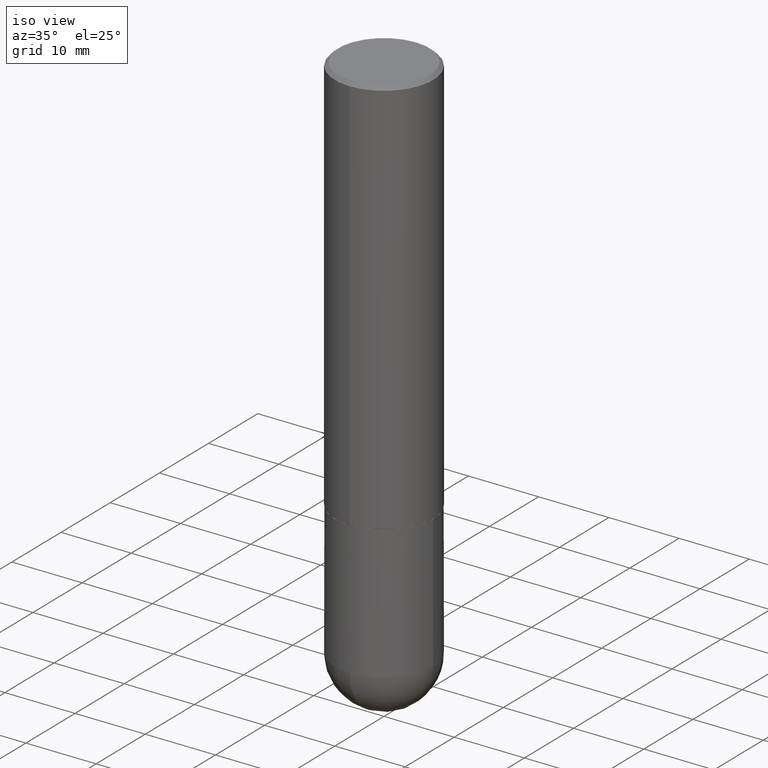
[diagram: clean part render]
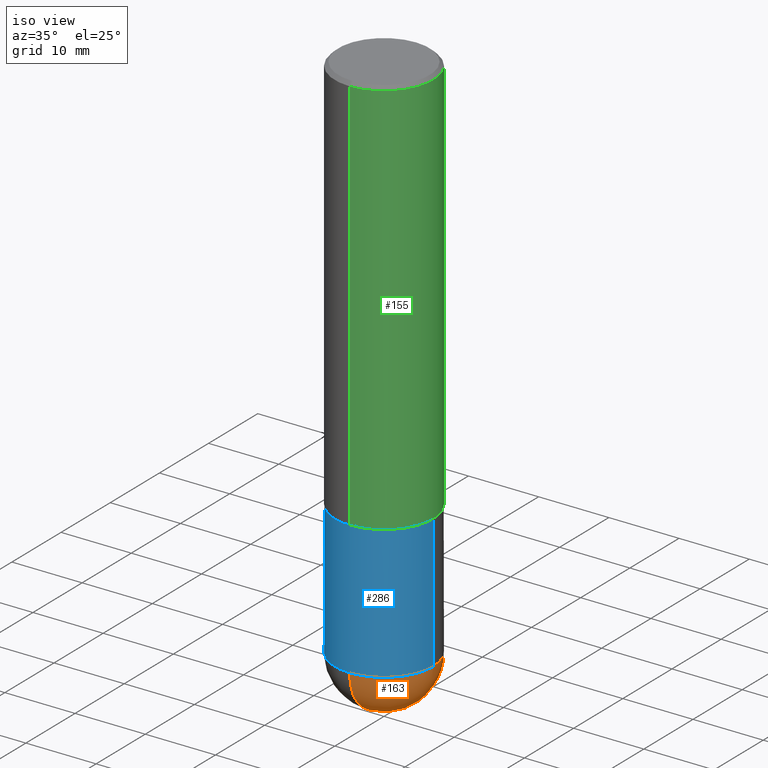
[diagram: same view with three faces highlighted in distinct colors, each labeled with its STEP entity id]
A machine part, iso view with three faces highlighted in distinct colors.
Their STEP definitions:

[orange] entity #163 — the highlighted spherical surface has radius 7.0002 mm.
#14 = DIRECTION ( 'NONE',  ( 1.000000000000000000, -6.982962677686265922E-15, 4.883557194083112340E-29 ) ) ;
#16 = DIRECTION ( 'NONE',  ( -2.445468806185136597E-29, 3.491481338843145583E-15, 1.000000000000000000 ) ) ;
#22 = CARTESIAN_POINT ( 'NONE',  ( 7.317087214986547114E-29, -1.044686131395257581E-14, -2.992100000000000204 ) ) ;
#25 = DIRECTION ( 'NONE',  ( 1.000000000000000000, -6.982962677686264344E-15, 0.000000000000000000 ) ) ;
#36 = CARTESIAN_POINT ( 'NONE',  ( 6.985967437072660867E-29, -1.092104368209262610E-14, -2.992100000000000204 ) ) ;
#42 = AXIS2_PLACEMENT_3D ( 'NONE', #36, #129, #377 ) ;
#45 = CARTESIAN_POINT ( 'NONE',  ( 7.671722831522178326E-29, -1.186642030618554829E-14, -3.267700000000000049 ) ) ;
#64 = EDGE_CURVE ( 'NONE', #407, #368, #299, .T. ) ;
#104 = CARTESIAN_POINT ( 'NONE',  ( 6.985967437072660867E-29, -1.092104368209262610E-14, -2.992100000000000204 ) ) ;
#110 = CARTESIAN_POINT ( 'NONE',  ( 6.985967437072660867E-29, -1.092104368209262610E-14, -2.992100000000000204 ) ) ;
#111 = DIRECTION ( 'NONE',  ( -2.445468806185136597E-29, 3.491481338843145583E-15, 1.000000000000000000 ) ) ;
#119 = AXIS2_PLACEMENT_3D ( 'NONE', #110, #14, #137 ) ;
#129 = DIRECTION ( 'NONE',  ( -1.000000000000000000, 6.982962677686265922E-15, -4.883557194083112340E-29 ) ) ;
#137 = DIRECTION ( 'NONE',  ( 6.982962677686265922E-15, 1.000000000000000000, 0.000000000000000000 ) ) ;
#146 = ORIENTED_EDGE ( 'NONE', *, *, #64, .F. ) ;
#163 = ADVANCED_FACE ( 'NONE', ( #287 ), #218, .T. ) ;
#173 = AXIS2_PLACEMENT_3D ( 'NONE', #22, #16, #25 ) ;
#196 = CARTESIAN_POINT ( 'NONE',  ( 7.317087214986547114E-29, -1.044686131395257581E-14, -2.992100000000000204 ) ) ;
#198 = AXIS2_PLACEMENT_3D ( 'NONE', #104, #253, #412 ) ;
#218 = SPHERICAL_SURFACE ( 'NONE', #42, 0.2756000000000003447 ) ;
#219 = ORIENTED_EDGE ( 'NONE', *, *, #295, .F. ) ;
#234 = AXIS2_PLACEMENT_3D ( 'NONE', #196, #111, #291 ) ;
#244 = VERTEX_POINT ( 'NONE', #358 ) ;
#253 = DIRECTION ( 'NONE',  ( -1.000000000000000000, 7.105427357601001070E-15, -4.926315508542082329E-29 ) ) ;
#266 = CARTESIAN_POINT ( 'NONE',  ( -1.958255779754765592E-15, -0.2756000000000108918, -2.992099999999998872 ) ) ;
#271 = ORIENTED_EDGE ( 'NONE', *, *, #372, .F. ) ;
#287 = FACE_OUTER_BOUND ( 'NONE', #375, .T. ) ;
#288 = VERTEX_POINT ( 'NONE', #391 ) ;
#291 = DIRECTION ( 'NONE',  ( 1.000000000000000000, -6.982962677686264344E-15, 0.000000000000000000 ) ) ;
#295 = EDGE_CURVE ( 'NONE', #368, #288, #357, .T. ) ;
#299 = CIRCLE ( 'NONE', #198, 0.2756000000000003447 ) ;
#334 = ORIENTED_EDGE ( 'NONE', *, *, #340, .T. ) ;
#340 = EDGE_CURVE ( 'NONE', #407, #244, #398, .T. ) ;
#349 = CIRCLE ( 'NONE', #173, 0.2756000000000000671 ) ;
#357 = CIRCLE ( 'NONE', #234, 0.2756000000000000671 ) ;
#358 = CARTESIAN_POINT ( 'NONE',  ( 1.924504513970407924E-15, 0.2755999999999895200, -2.992100000000001092 ) ) ;
#368 = VERTEX_POINT ( 'NONE', #266 ) ;
#372 = EDGE_CURVE ( 'NONE', #288, #244, #349, .T. ) ;
#375 = EDGE_LOOP ( 'NONE', ( #146, #334, #271, #219 ) ) ;
#377 = DIRECTION ( 'NONE',  ( 6.982962677686265922E-15, 1.000000000000000000, -3.964946289788475374E-15 ) ) ;
#391 = CARTESIAN_POINT ( 'NONE',  ( 0.2756000000000000671, -1.106555180719557718E-14, -2.992100000000000204 ) ) ;
#398 = CIRCLE ( 'NONE', #119, 0.2756000000000003447 ) ;
#407 = VERTEX_POINT ( 'NONE', #45 ) ;
#412 = DIRECTION ( 'NONE',  ( -7.105427357601001859E-15, -1.000000000000000000, 0.000000000000000000 ) ) ;

[blue] entity #286 — the highlighted cylindrical surface (partial cylindrical patch) has radius 7.0002 mm, axis along (-0, 0, 1).
#30 = CARTESIAN_POINT ( 'NONE',  ( -0.2756000000000000116, -7.182791513470402485E-15, -2.244100000000000428 ) ) ;
#41 = DIRECTION ( 'NONE',  ( 1.000000000000000000, -6.982962677686267499E-15, 4.876176775795935793E-29 ) ) ;
#61 = EDGE_CURVE ( 'NONE', #319, #368, #157, .T. ) ;
#63 = ORIENTED_EDGE ( 'NONE', *, *, #172, .T. ) ;
#71 = LINE ( 'NONE', #226, #118 ) ;
#78 = VECTOR ( 'NONE', #260, 39.37007874015748143 ) ;
#82 = CARTESIAN_POINT ( 'NONE',  ( 5.487876547960065873E-29, -7.835233272497903917E-15, -2.244100000000000428 ) ) ;
#91 = VERTEX_POINT ( 'NONE', #30 ) ;
#111 = DIRECTION ( 'NONE',  ( -2.445468806185136597E-29, 3.491481338843145583E-15, 1.000000000000000000 ) ) ;
#118 = VECTOR ( 'NONE', #354, 39.37007874015748143 ) ;
#127 = EDGE_LOOP ( 'NONE', ( #209, #284, #384, #63, #178 ) ) ;
#134 = FACE_OUTER_BOUND ( 'NONE', #127, .T. ) ;
#150 = EDGE_CURVE ( 'NONE', #319, #91, #71, .T. ) ;
#157 = CIRCLE ( 'NONE', #233, 0.2756000000000000671 ) ;
#164 = CARTESIAN_POINT ( 'NONE',  ( 0.2756000000000000116, -9.759737786468238871E-15, -2.244100000000000428 ) ) ;
#172 = EDGE_CURVE ( 'NONE', #288, #275, #214, .T. ) ;
#178 = ORIENTED_EDGE ( 'NONE', *, *, #400, .F. ) ;
#190 = DIRECTION ( 'NONE',  ( -2.445468806185136597E-29, 3.491481338843145583E-15, 1.000000000000000000 ) ) ;
#196 = CARTESIAN_POINT ( 'NONE',  ( 7.317087214986547114E-29, -1.044686131395257581E-14, -2.992100000000000204 ) ) ;
#209 = ORIENTED_EDGE ( 'NONE', *, *, #150, .F. ) ;
#214 = LINE ( 'NONE', #382, #78 ) ;
#226 = CARTESIAN_POINT ( 'NONE',  ( -0.2756000000000000671, 1.958255779754836589E-15, -1.355658510874252287E-29 ) ) ;
#228 = CIRCLE ( 'NONE', #366, 0.2756000000000000116 ) ;
#232 = CARTESIAN_POINT ( 'NONE',  ( 0.000000000000000000, 0.000000000000000000, 0.000000000000000000 ) ) ;
#233 = AXIS2_PLACEMENT_3D ( 'NONE', #252, #190, #348 ) ;
#234 = AXIS2_PLACEMENT_3D ( 'NONE', #196, #111, #291 ) ;
#252 = CARTESIAN_POINT ( 'NONE',  ( 7.317087214986547114E-29, -1.044686131395257581E-14, -2.992100000000000204 ) ) ;
#260 = DIRECTION ( 'NONE',  ( -2.445468806185136877E-29, 3.491481338843145188E-15, 1.000000000000000000 ) ) ;
#266 = CARTESIAN_POINT ( 'NONE',  ( -1.958255779754765592E-15, -0.2756000000000108918, -2.992099999999998872 ) ) ;
#275 = VERTEX_POINT ( 'NONE', #164 ) ;
#284 = ORIENTED_EDGE ( 'NONE', *, *, #61, .T. ) ;
#286 = ADVANCED_FACE ( 'NONE', ( #134 ), #329, .T. ) ;
#288 = VERTEX_POINT ( 'NONE', #391 ) ;
#291 = DIRECTION ( 'NONE',  ( 1.000000000000000000, -6.982962677686264344E-15, 0.000000000000000000 ) ) ;
#295 = EDGE_CURVE ( 'NONE', #368, #288, #357, .T. ) ;
#300 = AXIS2_PLACEMENT_3D ( 'NONE', #232, #362, #41 ) ;
#319 = VERTEX_POINT ( 'NONE', #327 ) ;
#327 = CARTESIAN_POINT ( 'NONE',  ( -0.2756000000000000671, -7.182791513470404062E-15, -2.992100000000000204 ) ) ;
#329 = CYLINDRICAL_SURFACE ( 'NONE', #300, 0.2756000000000000671 ) ;
#335 = DIRECTION ( 'NONE',  ( -2.445468806185136597E-29, 3.491481338843145583E-15, 1.000000000000000000 ) ) ;
#348 = DIRECTION ( 'NONE',  ( 1.000000000000000000, -6.982962677686264344E-15, 0.000000000000000000 ) ) ;
#354 = DIRECTION ( 'NONE',  ( -2.445468806185136877E-29, 3.491481338843145188E-15, 1.000000000000000000 ) ) ;
#357 = CIRCLE ( 'NONE', #234, 0.2756000000000000671 ) ;
#362 = DIRECTION ( 'NONE',  ( -2.445468806185136597E-29, 3.491481338843145583E-15, 1.000000000000000000 ) ) ;
#366 = AXIS2_PLACEMENT_3D ( 'NONE', #82, #335, #397 ) ;
#368 = VERTEX_POINT ( 'NONE', #266 ) ;
#382 = CARTESIAN_POINT ( 'NONE',  ( 0.2756000000000000671, -1.924504513970335743E-15, 1.343874319409360268E-29 ) ) ;
#384 = ORIENTED_EDGE ( 'NONE', *, *, #295, .T. ) ;
#391 = CARTESIAN_POINT ( 'NONE',  ( 0.2756000000000000671, -1.106555180719557718E-14, -2.992100000000000204 ) ) ;
#397 = DIRECTION ( 'NONE',  ( 1.000000000000000000, -6.982962677686269866E-15, 0.000000000000000000 ) ) ;
#400 = EDGE_CURVE ( 'NONE', #91, #275, #228, .T. ) ;

[green] entity #155 — the highlighted cylindrical surface (partial cylindrical patch) has radius 7.0002 mm, axis along (-0, 0, 1).
#12 = DIRECTION ( 'NONE',  ( -6.982962677686265922E-15, -1.000000000000000000, 3.500304146453892878E-15 ) ) ;
#13 = VECTOR ( 'NONE', #105, 39.37007874015748143 ) ;
#37 = DIRECTION ( 'NONE',  ( -2.444322153688896645E-29, 3.493123410481168498E-15, 1.000000000000000000 ) ) ;
#59 = DIRECTION ( 'NONE',  ( -2.444322153688896365E-29, 3.493123410481168498E-15, 1.000000000000000000 ) ) ;
#65 = CARTESIAN_POINT ( 'NONE',  ( 1.958255779754836984E-15, 0.2756000000000001782, -9.627048119286106573E-16 ) ) ;
#72 = CIRCLE ( 'NONE', #303, 0.2756000000000002892 ) ;
#81 = EDGE_CURVE ( 'NONE', #187, #149, #132, .T. ) ;
#87 = ORIENTED_EDGE ( 'NONE', *, *, #246, .F. ) ;
#94 = ORIENTED_EDGE ( 'NONE', *, *, #122, .T. ) ;
#96 = CARTESIAN_POINT ( 'NONE',  ( -1.924504513970282100E-15, -0.2756000000000081163, -2.243099999999999206 ) ) ;
#105 = DIRECTION ( 'NONE',  ( -2.444322153688896645E-29, 3.493123410481168498E-15, 1.000000000000000000 ) ) ;
#113 = AXIS2_PLACEMENT_3D ( 'NONE', #297, #296, #12 ) ;
#121 = ORIENTED_EDGE ( 'NONE', *, *, #326, .F. ) ;
#122 = EDGE_CURVE ( 'NONE', #170, #187, #72, .T. ) ;
#132 = LINE ( 'NONE', #65, #171 ) ;
#139 = CARTESIAN_POINT ( 'NONE',  ( -1.924504513970336137E-15, -0.2756000000000001782, 9.627048119286106573E-16 ) ) ;
#142 = ORIENTED_EDGE ( 'NONE', *, *, #81, .T. ) ;
#149 = VERTEX_POINT ( 'NONE', #259 ) ;
#154 = CARTESIAN_POINT ( 'NONE',  ( 5.482859022939564646E-29, -7.835425122050310720E-15, -2.243100000000000094 ) ) ;
#155 = ADVANCED_FACE ( 'NONE', ( #243 ), #185, .T. ) ;
#170 = VERTEX_POINT ( 'NONE', #96 ) ;
#171 = VECTOR ( 'NONE', #37, 39.37007874015748143 ) ;
#181 = EDGE_LOOP ( 'NONE', ( #94, #142, #121, #87 ) ) ;
#185 = CYLINDRICAL_SURFACE ( 'NONE', #254, 0.2756000000000001782 ) ;
#187 = VERTEX_POINT ( 'NONE', #192 ) ;
#192 = CARTESIAN_POINT ( 'NONE',  ( 1.958255779754864988E-15, 0.2755999999999924621, -2.243100000000001426 ) ) ;
#200 = LINE ( 'NONE', #139, #13 ) ;
#222 = DIRECTION ( 'NONE',  ( -2.444322153688896365E-29, 3.493123410481168498E-15, 1.000000000000000000 ) ) ;
#243 = FACE_OUTER_BOUND ( 'NONE', #181, .T. ) ;
#246 = EDGE_CURVE ( 'NONE', #170, #338, #200, .T. ) ;
#254 = AXIS2_PLACEMENT_3D ( 'NONE', #280, #59, #386 ) ;
#259 = CARTESIAN_POINT ( 'NONE',  ( 1.924504513970335743E-15, 0.2755999999999999561, -0.02000000000000102737 ) ) ;
#280 = CARTESIAN_POINT ( 'NONE',  ( 0.000000000000000000, 0.000000000000000000, 0.000000000000000000 ) ) ;
#281 = DIRECTION ( 'NONE',  ( -6.982962677686265922E-15, -1.000000000000000000, 3.964946289788476952E-15 ) ) ;
#296 = DIRECTION ( 'NONE',  ( -2.444322153688896365E-29, 3.493123410481168498E-15, 1.000000000000000000 ) ) ;
#297 = CARTESIAN_POINT ( 'NONE',  ( 4.888644307377808495E-31, -6.986246820962358886E-17, -0.02000000000000006287 ) ) ;
#303 = AXIS2_PLACEMENT_3D ( 'NONE', #154, #222, #281 ) ;
#326 = EDGE_CURVE ( 'NONE', #338, #149, #385, .T. ) ;
#328 = CARTESIAN_POINT ( 'NONE',  ( -1.890753248185833713E-15, -0.2756000000000000671, -0.01999999999999909836 ) ) ;
#338 = VERTEX_POINT ( 'NONE', #328 ) ;
#385 = CIRCLE ( 'NONE', #113, 0.2756000000000000116 ) ;
#386 = DIRECTION ( 'NONE',  ( -6.982962677686265922E-15, -1.000000000000000000, 3.493123410481168498E-15 ) ) ;